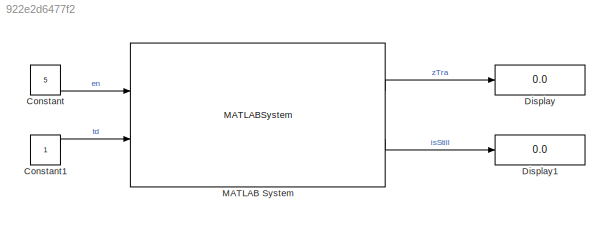
MODEL slx_922e2d6477f2
KIND model
CONFIG AbsTol = auto
CONFIG EnableMultiTasking = off
CONFIG FixedStep = auto
CONFIG MaxStep = auto
CONFIG MinStep = auto
CONFIG RelTol = 1e-3
CONFIG SampleTimeConstraint = Unconstrained
CONFIG SolverName = FixedStepAuto
CONFIG StartTime = 0.0
CONFIG StopTime = 100
BLOCK [Constant] Constant
  Value = 5
BLOCK [Constant] Constant1
BLOCK [Display] Display
  Decimation = 1
  Ports = [1]
BLOCK [Display] Display1
  Decimation = 1
  Ports = [1]
BLOCK [MATLABSystem] MATLAB System
  MaskDisplay = disp('jump_closed');\nport_label('input',1,'EN');\nport_label('input',2,'tdFlag');\nport_label('output',1,'zTra');\nport_label('output',2,'isStill');
  MaskType = jump_closed
  OffsetTime = 0
  Ports = [2, 2]
  SampleTime = 0.004
  SimulateUsing = Code generation
  System = jump_closed
  TickTime = 0
  lh = 0.07
  tdy = 0.05
  tsk = 0.15
  tst = 0.05
  tst_wt = 0.1
  zOff = -0.5
LINE Constant1:1 -> MATLAB System:2
LINE Constant:1 -> MATLAB System:1
LINE MATLAB System:1 -> Display:1
LINE MATLAB System:2 -> Display1:1
